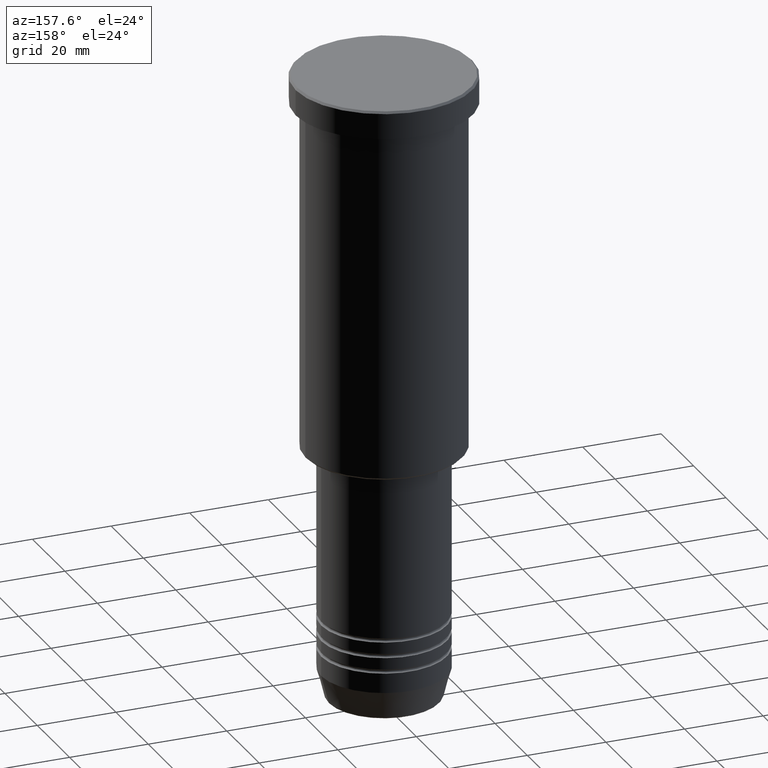
[diagram: clean part render]
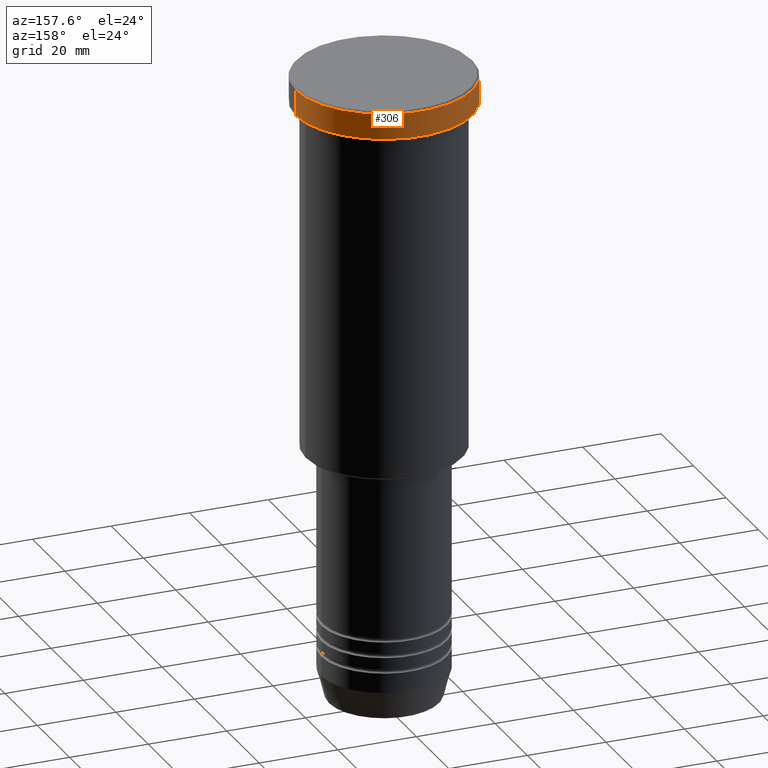
[diagram: same view with one face highlighted and labeled with its STEP entity id]
A machine part, auxiliary view. The second image highlights one B-rep face of the part: STEP entity #306.
In plain terms, the highlighted cylindrical surface (partial cylindrical patch) has radius 22.5 mm, axis along (-0, -0, 1).
Its self-contained STEP definition (entity closure, byte-faithful):
#1 = EDGE_CURVE ( 'NONE', #128, #1183, #60, .T. ) ;
#42 = CIRCLE ( 'NONE', #679, 22.50000000000000000 ) ;
#60 = LINE ( 'NONE', #800, #414 ) ;
#77 = AXIS2_PLACEMENT_3D ( 'NONE', #1028, #1020, #574 ) ;
#91 = LINE ( 'NONE', #462, #579 ) ;
#124 = CARTESIAN_POINT ( 'NONE',  ( 0.000000000000000000, 0.000000000000000000, -0.4999999999999796274 ) ) ;
#128 = VERTEX_POINT ( 'NONE', #452 ) ;
#135 = VERTEX_POINT ( 'NONE', #374 ) ;
#225 = DIRECTION ( 'NONE',  ( 0.000000000000000000, 0.000000000000000000, -1.000000000000000000 ) ) ;
#249 = CIRCLE ( 'NONE', #404, 22.50000000000000000 ) ;
#264 = DIRECTION ( 'NONE',  ( 1.000000000000000000, 0.000000000000000000, 0.000000000000000000 ) ) ;
#296 = ORIENTED_EDGE ( 'NONE', *, *, #397, .T. ) ;
#306 = ADVANCED_FACE ( 'NONE', ( #390 ), #675, .T. ) ;
#323 = ORIENTED_EDGE ( 'NONE', *, *, #1, .T. ) ;
#374 = CARTESIAN_POINT ( 'NONE',  ( 22.50000000000000000, 0.000000000000000000, -6.999999999999995559 ) ) ;
#390 = FACE_OUTER_BOUND ( 'NONE', #784, .T. ) ;
#392 = ORIENTED_EDGE ( 'NONE', *, *, #943, .T. ) ;
#397 = EDGE_CURVE ( 'NONE', #1183, #827, #249, .T. ) ;
#404 = AXIS2_PLACEMENT_3D ( 'NONE', #124, #225, #1129 ) ;
#414 = VECTOR ( 'NONE', #711, 1000.000000000000000 ) ;
#440 = ORIENTED_EDGE ( 'NONE', *, *, #646, .F. ) ;
#452 = CARTESIAN_POINT ( 'NONE',  ( -22.50000000000000000, 2.755455298081544778E-15, -6.999999999999995559 ) ) ;
#462 = CARTESIAN_POINT ( 'NONE',  ( 22.50000000000000000, 0.000000000000000000, 0.000000000000000000 ) ) ;
#574 = DIRECTION ( 'NONE',  ( 1.000000000000000000, 0.000000000000000000, 0.000000000000000000 ) ) ;
#579 = VECTOR ( 'NONE', #1098, 1000.000000000000000 ) ;
#646 = EDGE_CURVE ( 'NONE', #135, #827, #91, .T. ) ;
#661 = CARTESIAN_POINT ( 'NONE',  ( -22.50000000000000000, 2.755455298081544778E-15, -0.4999999999999796274 ) ) ;
#675 = CYLINDRICAL_SURFACE ( 'NONE', #77, 22.50000000000000000 ) ;
#679 = AXIS2_PLACEMENT_3D ( 'NONE', #977, #1179, #264 ) ;
#711 = DIRECTION ( 'NONE',  ( -0.000000000000000000, -0.000000000000000000, 1.000000000000000000 ) ) ;
#784 = EDGE_LOOP ( 'NONE', ( #392, #323, #296, #440 ) ) ;
#800 = CARTESIAN_POINT ( 'NONE',  ( -22.50000000000000000, 2.755455298081544778E-15, 0.000000000000000000 ) ) ;
#827 = VERTEX_POINT ( 'NONE', #960 ) ;
#943 = EDGE_CURVE ( 'NONE', #135, #128, #42, .T. ) ;
#960 = CARTESIAN_POINT ( 'NONE',  ( 22.50000000000000000, 0.000000000000000000, -0.4999999999999796274 ) ) ;
#977 = CARTESIAN_POINT ( 'NONE',  ( 0.000000000000000000, 0.000000000000000000, -6.999999999999995559 ) ) ;
#1020 = DIRECTION ( 'NONE',  ( -0.000000000000000000, -0.000000000000000000, 1.000000000000000000 ) ) ;
#1028 = CARTESIAN_POINT ( 'NONE',  ( 0.000000000000000000, 0.000000000000000000, 0.000000000000000000 ) ) ;
#1098 = DIRECTION ( 'NONE',  ( -0.000000000000000000, -0.000000000000000000, 1.000000000000000000 ) ) ;
#1129 = DIRECTION ( 'NONE',  ( 1.000000000000000000, 0.000000000000000000, 0.000000000000000000 ) ) ;
#1179 = DIRECTION ( 'NONE',  ( -0.000000000000000000, -0.000000000000000000, 1.000000000000000000 ) ) ;
#1183 = VERTEX_POINT ( 'NONE', #661 ) ;